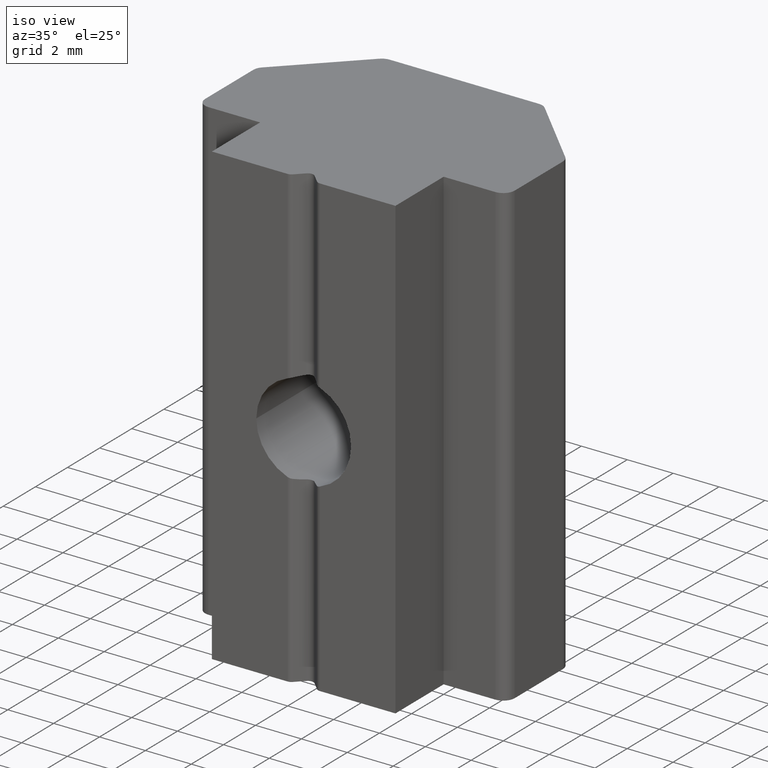
[diagram: clean part render]
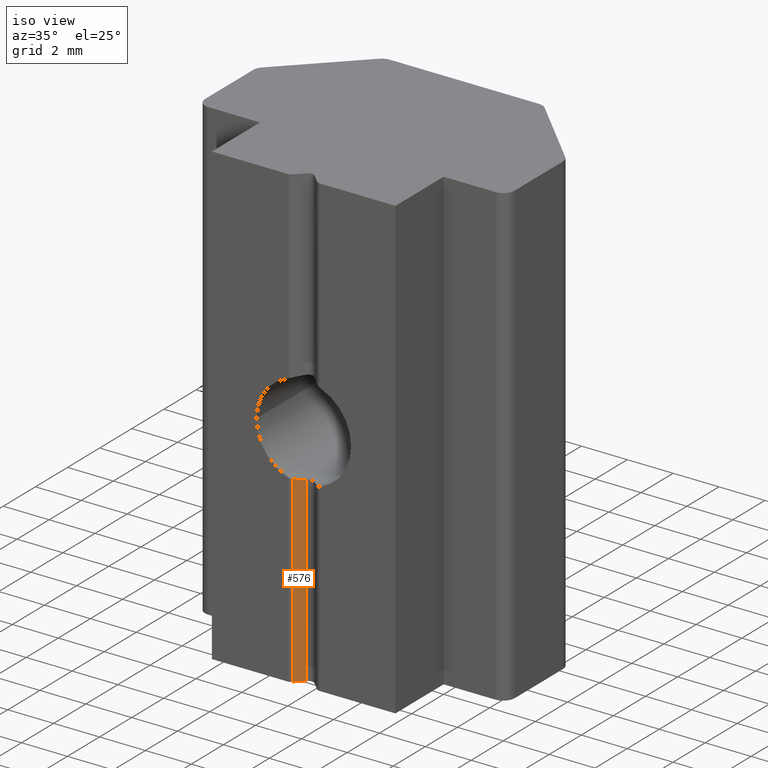
[diagram: same view with one face highlighted and labeled with its STEP entity id]
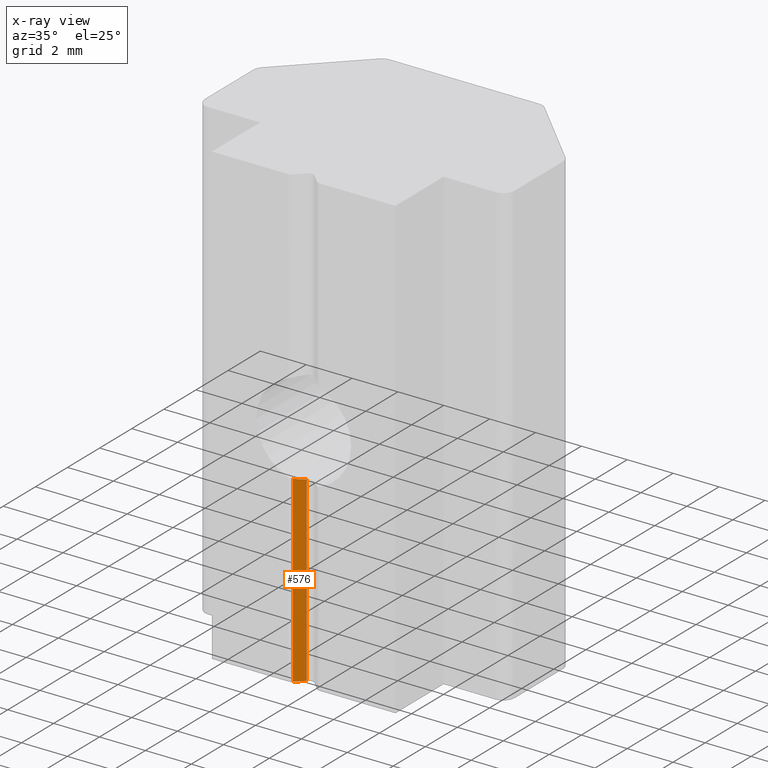
[diagram: x-ray of the same camera — body ghosted, the highlighted face saturated]
A machine part, iso view. The second image highlights one B-rep face of the part: STEP entity #576.
The next image is the same camera in x-ray: the body ghosted, the highlighted face saturated — about 0% of this face is hidden behind the body in this view.
In plain terms, the highlighted planar face has unit normal (-0.7071, 0.7071, 0).
Its self-contained STEP definition (entity closure, byte-faithful):
#17=PLANE('',#636);
#36=FACE_OUTER_BOUND('',#66,.T.);
#66=EDGE_LOOP('',(#411,#412,#413,#414));
#94=ELLIPSE('',#627,2.92317943342519,2.067);
#106=LINE('',#927,#161);
#112=LINE('',#940,#167);
#113=LINE('',#941,#168);
#161=VECTOR('',#708,10.);
#167=VECTOR('',#718,10.);
#168=VECTOR('',#719,10.);
#241=VERTEX_POINT('',#861);
#242=VERTEX_POINT('',#868);
#253=VERTEX_POINT('',#925);
#258=VERTEX_POINT('',#939);
#301=EDGE_CURVE('',#242,#241,#94,.T.);
#314=EDGE_CURVE('',#253,#241,#106,.T.);
#320=EDGE_CURVE('',#258,#253,#112,.T.);
#321=EDGE_CURVE('',#258,#242,#113,.T.);
#411=ORIENTED_EDGE('',*,*,#301,.T.);
#412=ORIENTED_EDGE('',*,*,#314,.F.);
#413=ORIENTED_EDGE('',*,*,#320,.F.);
#414=ORIENTED_EDGE('',*,*,#321,.T.);
#576=ADVANCED_FACE('',(#36),#17,.F.);
#627=AXIS2_PLACEMENT_3D('',#869,#691,#692);
#636=AXIS2_PLACEMENT_3D('',#938,#716,#717);
#691=DIRECTION('center_axis',(-0.707106781186548,0.707106781186547,0.));
#692=DIRECTION('ref_axis',(0.707106781186547,0.707106781186548,0.));
#708=DIRECTION('',(0.,0.,1.));
#716=DIRECTION('center_axis',(-0.707106781186548,0.707106781186547,0.));
#717=DIRECTION('ref_axis',(-0.707106781186547,-0.707106781186548,0.));
#718=DIRECTION('',(-0.707106781186547,-0.707106781186548,0.));
#719=DIRECTION('',(0.,0.,1.));
#861=CARTESIAN_POINT('',(-0.53033008588991,-2.92677669529664,-1.99780854938605));
#868=CARTESIAN_POINT('',(-0.176776695296637,-2.57322330470336,-2.05942686201768));
#869=CARTESIAN_POINT('Origin',(0.,-2.39644660940673,0.));
#925=CARTESIAN_POINT('',(-0.53033008588991,-2.92677669529664,-10.));
#927=CARTESIAN_POINT('',(-0.53033008588991,-2.92677669529664,0.));
#938=CARTESIAN_POINT('Origin',(-0.176776695296637,-2.57322330470336,0.));
#939=CARTESIAN_POINT('',(-0.176776695296637,-2.57322330470336,-10.));
#940=CARTESIAN_POINT('',(0.96724365896336,-1.42920295044337,-10.));
#941=CARTESIAN_POINT('',(-0.176776695296637,-2.57322330470336,0.));